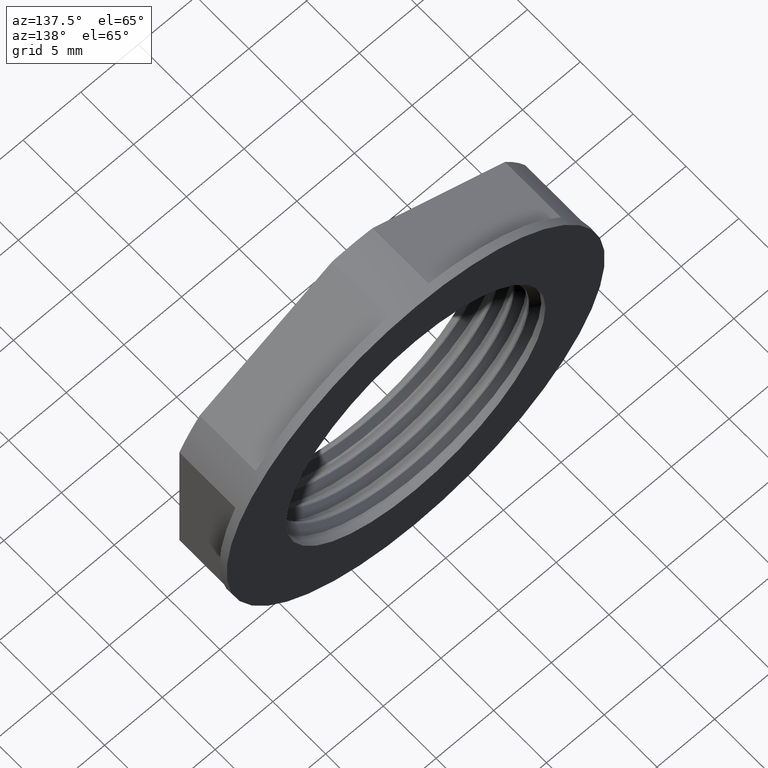
[diagram: clean part render]
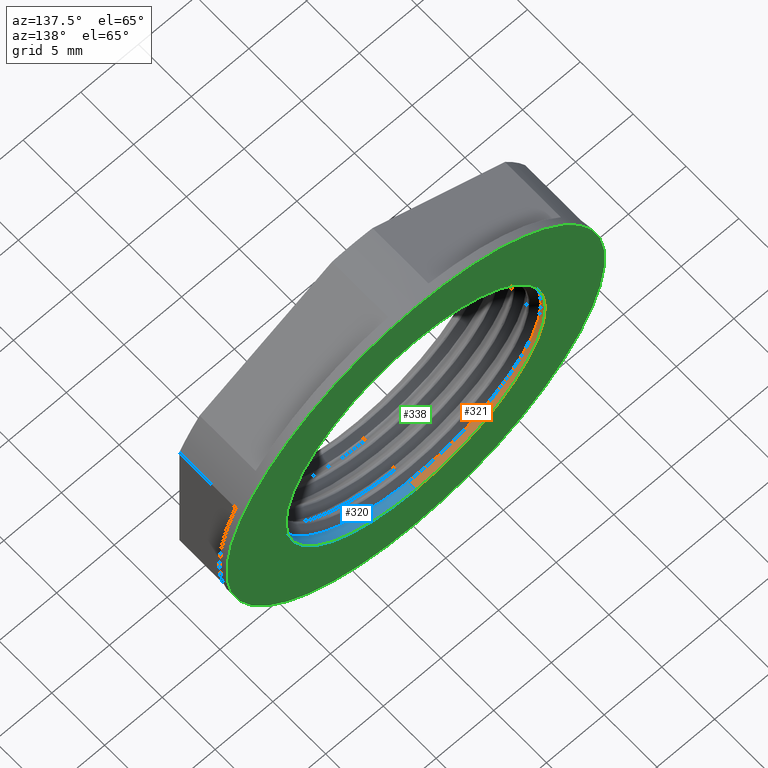
[diagram: same view with three faces highlighted in distinct colors, each labeled with its STEP entity id]
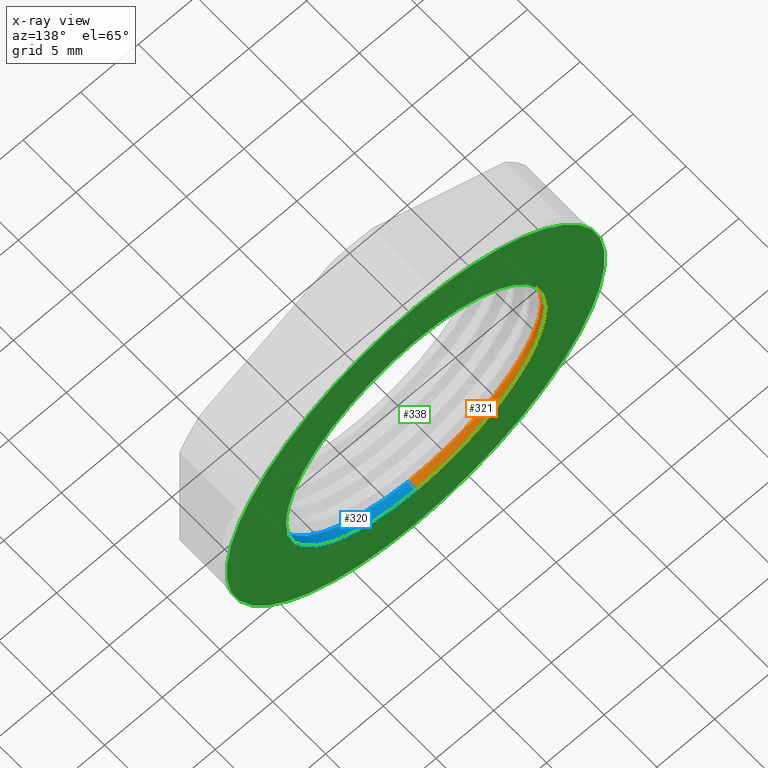
[diagram: x-ray of the same camera — body ghosted, the three highlighted faces saturated]
A machine part, auxiliary view with three faces highlighted in distinct colors.
The next image is the same camera in x-ray (body ghosted, the three faces saturated) — at least one of them is partly hidden behind the body in this view.
Their STEP definitions:

[orange] entity #321 — the highlighted cylindrical surface (partial cylindrical patch) has radius 11.25 mm, axis along (0, 1, 0).
#150 = CARTESIAN_POINT ( 'NONE',  ( 6.505213034913029600E-016, -12.88099595250672500, 11.25000000000000000 ) ) ;
#155 = CARTESIAN_POINT ( 'NONE',  ( 3.827345578058130700E-013, -13.58599595250673400, -11.25000000000000000 ) ) ;
#168 = CARTESIAN_POINT ( 'NONE',  ( 2.245089387029176300E-015, -12.83904097094786000, -11.25000000000000000 ) ) ;
#200 = CARTESIAN_POINT ( 'NONE',  ( 8.673617379884039400E-016, -12.83904097094786000, 11.25000000000000000 ) ) ;
#292 = EDGE_CURVE ( 'NONE', #935, #933, #1123, .T. ) ;
#302 = EDGE_CURVE ( 'NONE', #935, #927, #762, .T. ) ;
#307 = EDGE_CURVE ( 'NONE', #933, #947, #811, .T. ) ;
#314 = EDGE_CURVE ( 'NONE', #927, #947, #2125, .T. ) ;
#321 = ADVANCED_FACE ( 'NONE', ( #853 ), #869, .F. ) ;
#698 = CARTESIAN_POINT ( 'NONE',  ( -11.24999999999999800, -13.23349595250672600, -1.784979134680175000E-016 ) ) ;
#706 = CARTESIAN_POINT ( 'NONE',  ( -4.659902576697318100, -12.96912095250672300, 11.25000000000000000 ) ) ;
#707 = CARTESIAN_POINT ( 'NONE',  ( -7.954951288348660800, -13.05724595250672200, 7.954951288348660800 ) ) ;
#713 = CARTESIAN_POINT ( 'NONE',  ( -11.25000000000000000, -13.32162095250673100, -4.659902576697318100 ) ) ;
#715 = CARTESIAN_POINT ( 'NONE',  ( 3.827345578058130700E-013, -13.58599595250673400, -11.25000000000000000 ) ) ;
#716 = CARTESIAN_POINT ( 'NONE',  ( -7.954951288348660800, -13.40974595250672900, -7.954951288348660800 ) ) ;
#717 = CARTESIAN_POINT ( 'NONE',  ( 6.505213034913029600E-016, -12.88099595250672500, 11.25000000000000000 ) ) ;
#720 = CARTESIAN_POINT ( 'NONE',  ( -11.25000000000000000, -13.14537095250673500, 4.659902576697318100 ) ) ;
#726 = CARTESIAN_POINT ( 'NONE',  ( -4.659902576696395300, -13.49787095250674300, -11.25000000000092000 ) ) ;
#752 = DIRECTION ( 'NONE',  ( 0.0000000000000000000, 1.000000000000000000, 0.0000000000000000000 ) ) ;
#762 = LINE ( 'NONE', #785, #2100 ) ;
#785 = CARTESIAN_POINT ( 'NONE',  ( 2.245089387029176300E-015, -0.6864403799322559300, -11.25000000000000000 ) ) ;
#790 = DIRECTION ( 'NONE',  ( 0.0000000000000000000, 1.000000000000000000, 0.0000000000000000000 ) ) ;
#811 = LINE ( 'NONE', #832, #2086 ) ;
#832 = CARTESIAN_POINT ( 'NONE',  ( 8.673617379884039400E-016, -0.6864403799322559300, 11.25000000000000000 ) ) ;
#853 = FACE_OUTER_BOUND ( 'NONE', #932, .T. ) ;
#855 = DIRECTION ( 'NONE',  ( 0.0000000000000000000, 1.000000000000000000, 0.0000000000000000000 ) ) ;
#856 = DIRECTION ( 'NONE',  ( 0.0000000000000000000, 1.000000000000000000, 0.0000000000000000000 ) ) ;
#859 = CARTESIAN_POINT ( 'NONE',  ( 8.673617379884039400E-016, -0.6864403799322559300, 0.0000000000000000000 ) ) ;
#866 = CARTESIAN_POINT ( 'NONE',  ( 8.673617379884039400E-016, -12.83904097094786000, 0.0000000000000000000 ) ) ;
#869 = CYLINDRICAL_SURFACE ( 'NONE', #2111, 11.25000000000000000 ) ;
#875 = DIRECTION ( 'NONE',  ( 0.0000000000000000000, 0.0000000000000000000, 1.000000000000000000 ) ) ;
#877 = DIRECTION ( 'NONE',  ( 0.0000000000000000000, 0.0000000000000000000, 1.000000000000000000 ) ) ;
#927 = VERTEX_POINT ( 'NONE', #168 ) ;
#932 = EDGE_LOOP ( 'NONE', ( #1045, #1083, #1060, #1100 ) ) ;
#933 = VERTEX_POINT ( 'NONE', #150 ) ;
#935 = VERTEX_POINT ( 'NONE', #155 ) ;
#947 = VERTEX_POINT ( 'NONE', #200 ) ;
#1045 = ORIENTED_EDGE ( 'NONE', *, *, #292, .F. ) ;
#1060 = ORIENTED_EDGE ( 'NONE', *, *, #314, .T. ) ;
#1083 = ORIENTED_EDGE ( 'NONE', *, *, #302, .T. ) ;
#1100 = ORIENTED_EDGE ( 'NONE', *, *, #307, .F. ) ;
#1123 =( BOUNDED_CURVE ( )  B_SPLINE_CURVE ( 2, ( #715, #726, #716, #713, #698, #720, #707, #706, #717 ),
 .UNSPECIFIED., .F., .T. ) 
 B_SPLINE_CURVE_WITH_KNOTS ( ( 3, 2, 2, 2, 3 ),
 ( 0.03556424251735175500, 0.04445529960034623500, 0.05334635668334071500, 0.06223741376633519500, 0.07112847084932967500 ),
 .UNSPECIFIED. ) 
 CURVE ( )  GEOMETRIC_REPRESENTATION_ITEM ( )  RATIONAL_B_SPLINE_CURVE ( ( 1.000000000000019800, 0.9238795325112673100, 1.000000000000000000, 0.9238795325112869600, 1.000000000000000000, 0.9238795325112869600, 1.000000000000000000, 0.9238795325112869600, 1.000000000000000000 ) ) 
 REPRESENTATION_ITEM ( '' )  );
#2086 = VECTOR ( 'NONE', #790, 1000.000000000000000 ) ;
#2100 = VECTOR ( 'NONE', #752, 1000.000000000000000 ) ;
#2110 = AXIS2_PLACEMENT_3D ( 'NONE', #866, #855, #875 ) ;
#2111 = AXIS2_PLACEMENT_3D ( 'NONE', #859, #856, #877 ) ;
#2125 = CIRCLE ( 'NONE', #2110, 11.25000000000000000 ) ;

[blue] entity #320 — the highlighted cylindrical surface (partial cylindrical patch) has radius 11.25 mm, axis along (0, 1, 0).
#150 = CARTESIAN_POINT ( 'NONE',  ( 6.505213034913029600E-016, -12.88099595250672500, 11.25000000000000000 ) ) ;
#155 = CARTESIAN_POINT ( 'NONE',  ( 3.827345578058130700E-013, -13.58599595250673400, -11.25000000000000000 ) ) ;
#167 = CARTESIAN_POINT ( 'NONE',  ( 3.242561725580775000E-012, -14.29099595250666300, 11.25000000000000000 ) ) ;
#168 = CARTESIAN_POINT ( 'NONE',  ( 2.245089387029176300E-015, -12.83904097094786000, -11.25000000000000000 ) ) ;
#200 = CARTESIAN_POINT ( 'NONE',  ( 8.673617379884039400E-016, -12.83904097094786000, 11.25000000000000000 ) ) ;
#201 = CARTESIAN_POINT ( 'NONE',  ( 2.168404344971009900E-016, -14.07057416425001700, 11.25000000000000000 ) ) ;
#262 = EDGE_CURVE ( 'NONE', #947, #927, #2101, .T. ) ;
#264 = EDGE_CURVE ( 'NONE', #933, #952, #386, .T. ) ;
#291 = EDGE_CURVE ( 'NONE', #924, #935, #1121, .T. ) ;
#302 = EDGE_CURVE ( 'NONE', #935, #927, #762, .T. ) ;
#307 = EDGE_CURVE ( 'NONE', #933, #947, #811, .T. ) ;
#315 = EDGE_CURVE ( 'NONE', #924, #952, #829, .T. ) ;
#320 = ADVANCED_FACE ( 'NONE', ( #864 ), #858, .F. ) ;
#385 = ORIENTED_EDGE ( 'NONE', *, *, #302, .F. ) ;
#386 = LINE ( 'NONE', #463, #2102 ) ;
#390 = ORIENTED_EDGE ( 'NONE', *, *, #315, .T. ) ;
#423 = ORIENTED_EDGE ( 'NONE', *, *, #262, .T. ) ;
#429 = CARTESIAN_POINT ( 'NONE',  ( 8.673617379884039400E-016, -12.83904097094786000, 0.0000000000000000000 ) ) ;
#430 = DIRECTION ( 'NONE',  ( 0.0000000000000000000, 1.000000000000000000, 0.0000000000000000000 ) ) ;
#435 = DIRECTION ( 'NONE',  ( 0.0000000000000000000, 0.0000000000000000000, 1.000000000000000000 ) ) ;
#436 = DIRECTION ( 'NONE',  ( -0.0000000000000000000, -1.000000000000000000, -0.0000000000000000000 ) ) ;
#463 = CARTESIAN_POINT ( 'NONE',  ( 8.673617379884039400E-016, -0.6864403799322559300, 11.25000000000000000 ) ) ;
#690 = CARTESIAN_POINT ( 'NONE',  ( 11.25000000000000000, -13.85037095250673100, -4.659902576697326100 ) ) ;
#705 = CARTESIAN_POINT ( 'NONE',  ( 11.25000000000000000, -14.02662095250674100, 4.659902576697326100 ) ) ;
#710 = CARTESIAN_POINT ( 'NONE',  ( 4.659902576702021900, -14.20287095250659500, 11.24999999999530000 ) ) ;
#712 = CARTESIAN_POINT ( 'NONE',  ( 3.827345578058130700E-013, -13.58599595250673400, -11.25000000000000000 ) ) ;
#723 = CARTESIAN_POINT ( 'NONE',  ( 11.24999999999999800, -13.93849595250672400, -1.199229735572754400E-015 ) ) ;
#725 = CARTESIAN_POINT ( 'NONE',  ( 4.659902576698238300, -13.67412095250676400, -11.24999999999907600 ) ) ;
#727 = CARTESIAN_POINT ( 'NONE',  ( 7.954951288348660800, -14.11474595250672500, 7.954951288348660800 ) ) ;
#736 = CARTESIAN_POINT ( 'NONE',  ( 3.242561725580775000E-012, -14.29099595250666300, 11.25000000000000000 ) ) ;
#737 = CARTESIAN_POINT ( 'NONE',  ( 7.954951288348660800, -13.76224595250672400, -7.954951288348660800 ) ) ;
#752 = DIRECTION ( 'NONE',  ( 0.0000000000000000000, 1.000000000000000000, 0.0000000000000000000 ) ) ;
#762 = LINE ( 'NONE', #785, #2100 ) ;
#785 = CARTESIAN_POINT ( 'NONE',  ( 2.245089387029176300E-015, -0.6864403799322559300, -11.25000000000000000 ) ) ;
#790 = DIRECTION ( 'NONE',  ( 0.0000000000000000000, 1.000000000000000000, 0.0000000000000000000 ) ) ;
#801 = CARTESIAN_POINT ( 'NONE',  ( 8.673617379884039400E-016, -0.6864403799322559300, 11.25000000000000000 ) ) ;
#811 = LINE ( 'NONE', #832, #2086 ) ;
#829 = LINE ( 'NONE', #801, #2116 ) ;
#832 = CARTESIAN_POINT ( 'NONE',  ( 8.673617379884039400E-016, -0.6864403799322559300, 11.25000000000000000 ) ) ;
#847 = CARTESIAN_POINT ( 'NONE',  ( 8.673617379884039400E-016, -0.6864403799322559300, 0.0000000000000000000 ) ) ;
#858 = CYLINDRICAL_SURFACE ( 'NONE', #2124, 11.25000000000000000 ) ;
#862 = DIRECTION ( 'NONE',  ( 0.0000000000000000000, 1.000000000000000000, 0.0000000000000000000 ) ) ;
#864 = FACE_OUTER_BOUND ( 'NONE', #918, .T. ) ;
#870 = DIRECTION ( 'NONE',  ( 0.0000000000000000000, 0.0000000000000000000, 1.000000000000000000 ) ) ;
#876 = DIRECTION ( 'NONE',  ( 0.0000000000000000000, 1.000000000000000000, 0.0000000000000000000 ) ) ;
#918 = EDGE_LOOP ( 'NONE', ( #385, #1099, #390, #1106, #1090, #423 ) ) ;
#924 = VERTEX_POINT ( 'NONE', #167 ) ;
#927 = VERTEX_POINT ( 'NONE', #168 ) ;
#933 = VERTEX_POINT ( 'NONE', #150 ) ;
#935 = VERTEX_POINT ( 'NONE', #155 ) ;
#947 = VERTEX_POINT ( 'NONE', #200 ) ;
#952 = VERTEX_POINT ( 'NONE', #201 ) ;
#1090 = ORIENTED_EDGE ( 'NONE', *, *, #307, .T. ) ;
#1099 = ORIENTED_EDGE ( 'NONE', *, *, #291, .F. ) ;
#1106 = ORIENTED_EDGE ( 'NONE', *, *, #264, .F. ) ;
#1121 =( BOUNDED_CURVE ( )  B_SPLINE_CURVE ( 2, ( #736, #710, #727, #705, #723, #690, #737, #725, #712 ),
 .UNSPECIFIED., .F., .F. ) 
 B_SPLINE_CURVE_WITH_KNOTS ( ( 3, 2, 2, 2, 3 ),
 ( 0.0000000000000000000, 0.008891060629337938600, 0.01778212125867587700, 0.02667318188801381600, 0.03556424251735175500 ),
 .UNSPECIFIED. ) 
 CURVE ( )  GEOMETRIC_REPRESENTATION_ITEM ( )  RATIONAL_B_SPLINE_CURVE ( ( 0.9999999999998997500, 0.9238795325113872100, 1.000000000000000000, 0.9238795325112869600, 1.000000000000000000, 0.9238795325112869600, 1.000000000000000000, 0.9238795325113066100, 0.9999999999999803500 ) ) 
 REPRESENTATION_ITEM ( '' )  );
#2086 = VECTOR ( 'NONE', #790, 1000.000000000000000 ) ;
#2093 = AXIS2_PLACEMENT_3D ( 'NONE', #429, #430, #435 ) ;
#2100 = VECTOR ( 'NONE', #752, 1000.000000000000000 ) ;
#2101 = CIRCLE ( 'NONE', #2093, 11.25000000000000000 ) ;
#2102 = VECTOR ( 'NONE', #436, 1000.000000000000000 ) ;
#2116 = VECTOR ( 'NONE', #876, 1000.000000000000000 ) ;
#2124 = AXIS2_PLACEMENT_3D ( 'NONE', #847, #862, #870 ) ;

[green] entity #338 — the highlighted planar face has unit normal (0, -1, 0).
#15 = FACE_OUTER_BOUND ( 'NONE', #904, .T. ) ;
#17 = PLANE ( 'NONE',  #2135 ) ;
#18 = CARTESIAN_POINT ( 'NONE',  ( 16.40000000000000200, -12.83904097094786000, 0.0000000000000000000 ) ) ;
#26 = DIRECTION ( 'NONE',  ( 0.0000000000000000000, -1.000000000000000000, 0.0000000000000000000 ) ) ;
#35 = DIRECTION ( 'NONE',  ( 0.0000000000000000000, -0.0000000000000000000, -1.000000000000000000 ) ) ;
#38 = FACE_BOUND ( 'NONE', #915, .T. ) ;
#91 = CARTESIAN_POINT ( 'NONE',  ( 8.673617379884039400E-016, -12.83904097094786000, 0.0000000000000000000 ) ) ;
#116 = DIRECTION ( 'NONE',  ( 0.0000000000000000000, 0.0000000000000000000, 1.000000000000000000 ) ) ;
#126 = DIRECTION ( 'NONE',  ( -0.0000000000000000000, -1.000000000000000000, -0.0000000000000000000 ) ) ;
#157 = CARTESIAN_POINT ( 'NONE',  ( 8.673617379884039400E-016, -12.83904097094786000, 16.40000000000000200 ) ) ;
#164 = DIRECTION ( 'NONE',  ( 0.0000000000000000000, 0.0000000000000000000, 1.000000000000000000 ) ) ;
#168 = CARTESIAN_POINT ( 'NONE',  ( 2.245089387029176300E-015, -12.83904097094786000, -11.25000000000000000 ) ) ;
#171 = CARTESIAN_POINT ( 'NONE',  ( 8.673617379884039400E-016, -12.83904097094786000, 0.0000000000000000000 ) ) ;
#173 = DIRECTION ( 'NONE',  ( -0.0000000000000000000, -1.000000000000000000, -0.0000000000000000000 ) ) ;
#199 = CARTESIAN_POINT ( 'NONE',  ( 2.875782488590063300E-015, -12.83904097094786000, -16.40000000000000200 ) ) ;
#200 = CARTESIAN_POINT ( 'NONE',  ( 8.673617379884039400E-016, -12.83904097094786000, 11.25000000000000000 ) ) ;
#262 = EDGE_CURVE ( 'NONE', #947, #927, #2101, .T. ) ;
#314 = EDGE_CURVE ( 'NONE', #927, #947, #2125, .T. ) ;
#338 = ADVANCED_FACE ( 'NONE', ( #15, #38 ), #17, .F. ) ;
#349 = EDGE_CURVE ( 'NONE', #937, #950, #2140, .T. ) ;
#375 = EDGE_CURVE ( 'NONE', #950, #937, #2154, .T. ) ;
#429 = CARTESIAN_POINT ( 'NONE',  ( 8.673617379884039400E-016, -12.83904097094786000, 0.0000000000000000000 ) ) ;
#430 = DIRECTION ( 'NONE',  ( 0.0000000000000000000, 1.000000000000000000, 0.0000000000000000000 ) ) ;
#435 = DIRECTION ( 'NONE',  ( 0.0000000000000000000, 0.0000000000000000000, 1.000000000000000000 ) ) ;
#855 = DIRECTION ( 'NONE',  ( 0.0000000000000000000, 1.000000000000000000, 0.0000000000000000000 ) ) ;
#866 = CARTESIAN_POINT ( 'NONE',  ( 8.673617379884039400E-016, -12.83904097094786000, 0.0000000000000000000 ) ) ;
#875 = DIRECTION ( 'NONE',  ( 0.0000000000000000000, 0.0000000000000000000, 1.000000000000000000 ) ) ;
#904 = EDGE_LOOP ( 'NONE', ( #1080, #1058 ) ) ;
#915 = EDGE_LOOP ( 'NONE', ( #1069, #1051 ) ) ;
#927 = VERTEX_POINT ( 'NONE', #168 ) ;
#937 = VERTEX_POINT ( 'NONE', #157 ) ;
#947 = VERTEX_POINT ( 'NONE', #200 ) ;
#950 = VERTEX_POINT ( 'NONE', #199 ) ;
#1051 = ORIENTED_EDGE ( 'NONE', *, *, #314, .F. ) ;
#1058 = ORIENTED_EDGE ( 'NONE', *, *, #375, .F. ) ;
#1069 = ORIENTED_EDGE ( 'NONE', *, *, #262, .F. ) ;
#1080 = ORIENTED_EDGE ( 'NONE', *, *, #349, .F. ) ;
#2093 = AXIS2_PLACEMENT_3D ( 'NONE', #429, #430, #435 ) ;
#2101 = CIRCLE ( 'NONE', #2093, 11.25000000000000000 ) ;
#2110 = AXIS2_PLACEMENT_3D ( 'NONE', #866, #855, #875 ) ;
#2125 = CIRCLE ( 'NONE', #2110, 11.25000000000000000 ) ;
#2135 = AXIS2_PLACEMENT_3D ( 'NONE', #18, #26, #35 ) ;
#2140 = CIRCLE ( 'NONE', #2163, 16.40000000000000200 ) ;
#2154 = CIRCLE ( 'NONE', #2167, 16.40000000000000200 ) ;
#2163 = AXIS2_PLACEMENT_3D ( 'NONE', #91, #126, #116 ) ;
#2167 = AXIS2_PLACEMENT_3D ( 'NONE', #171, #173, #164 ) ;